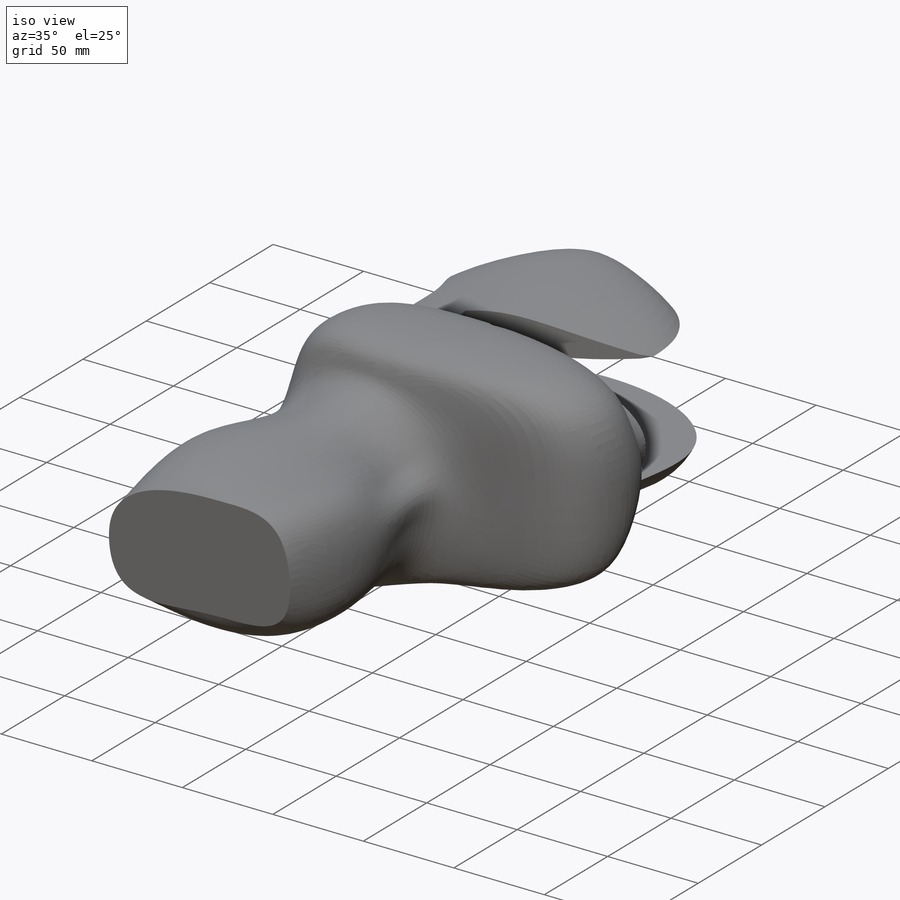
[diagram: iso view]
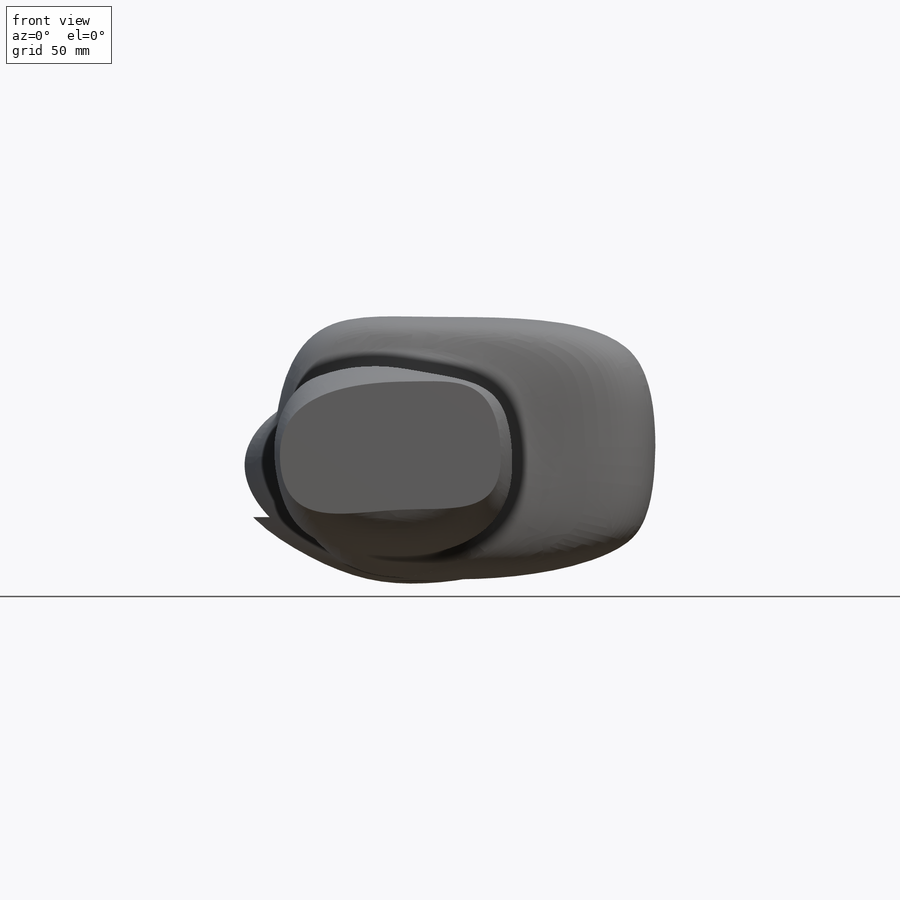
[diagram: front view]
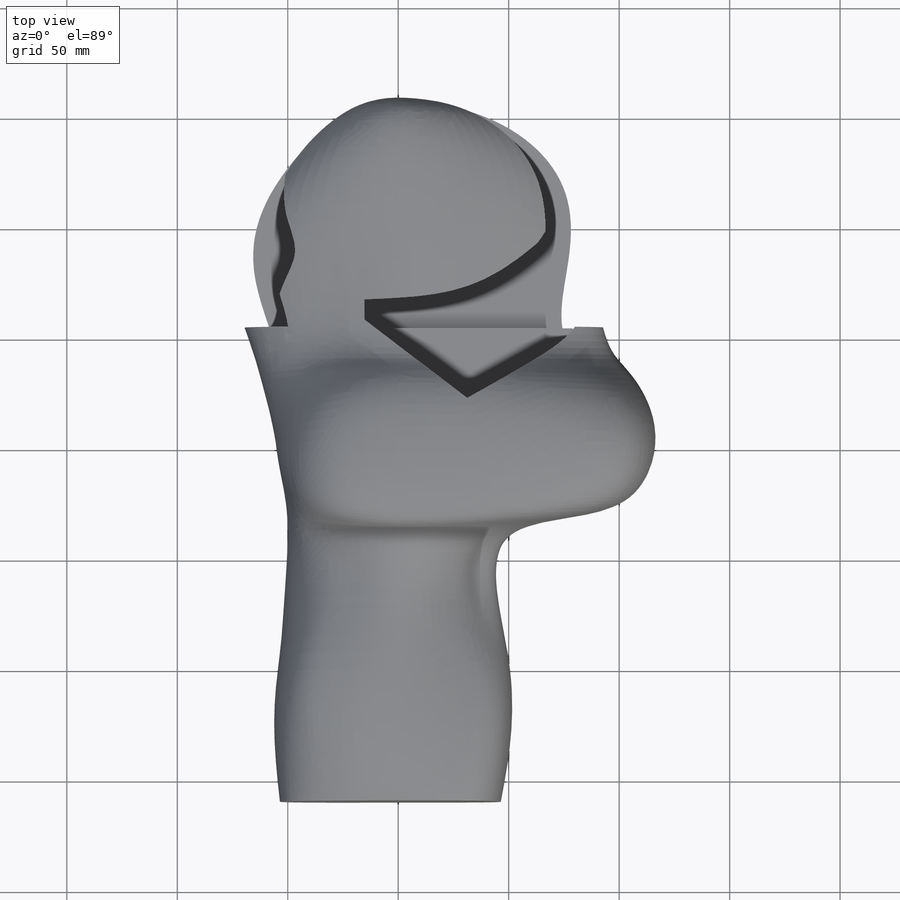
[diagram: top view]
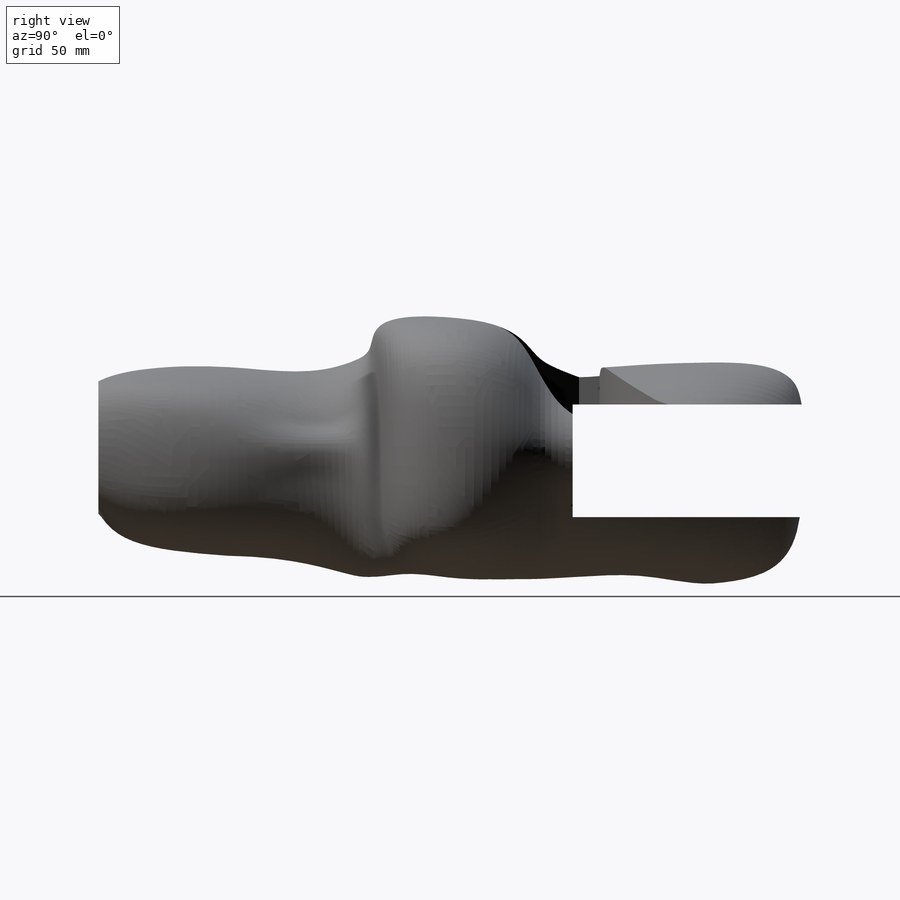
[diagram: right view]
SOLIDWORKS PART (.sldprt)
format: sldprt  version: not decoded by parser v0  size: 2,319,872 bytes
history: native  units: mm
features: sketch x16, plane x9, cut_extrude x5, material x1 (+14 scaffold rows collapsed)
feature tree (45):
  scaffold x14  (default folders/planes/origin — collapsed)
  material  "Material <not specified>"
  plane  "Plane1"  Offset=40mm
  plane  "Plane2"  Offset=80mm
  plane  "Plane3"  Offset=120mm
  plane  "Plane4"  Offset=160mm
  plane  "Plane5"  Offset=200mm
  plane  "Plane6"  Offset=240mm
  sketch  "Sketch14"  dims[D1=100.0mm]
  plane  "Plane7"  Offset=360mm
  plane  "Plane11"  Offset=60mm
  sketch  "Sketch15"
  sketch  "Sketch13"
  sketch  "Sketch6"
  sketch  "Sketch1"  dims[D1=100.0mm D2=58.0mm]
  sketch  "Sketch2"
  sketch  "Sketch3"
  sketch  "Sketch4"
  sketch  "Sketch5"
  sketch  "Sketch11"
  sketch  "Sketch12"
  sketch  "Sketch7"  dims[c1.D2=5.0mm c1.D1=40.0mm c2.D1=28.0mm]
  cut_extrude  "Extrude1"  Depth=53.151607mm
  plane  "Plane10"  Offset=60mm
  sketch  "Sketch8"
  cut_extrude  "Extrude2"  Depth=87mm
  sketch  "Sketch9"  dims[D1=51.0mm D2=116.0mm D3=~29.329696mm D4=32.0mm]
  cut_extrude  "Extrude3"  [1 undecoded]
  sketch  "Sketch10"
  cut_extrude  "Extrude4"  Depth=60mm
  sketch  "Sketch17"
  cut_extrude  "Extrude6"  Depth=86mm
decode coverage: 8 of 21 modeling features carry decoded parameters
note: ~ marks probable driven/reference dimensions
note: 1 parameter value undecoded
note: suppression state not decoded; provenance and decode notes live in map.json
